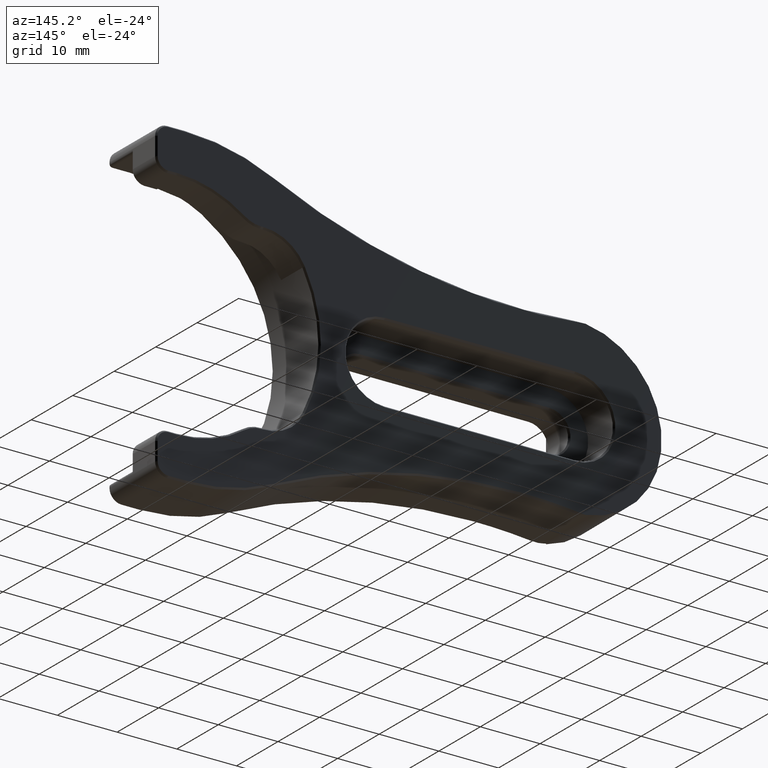
[diagram: clean part render]
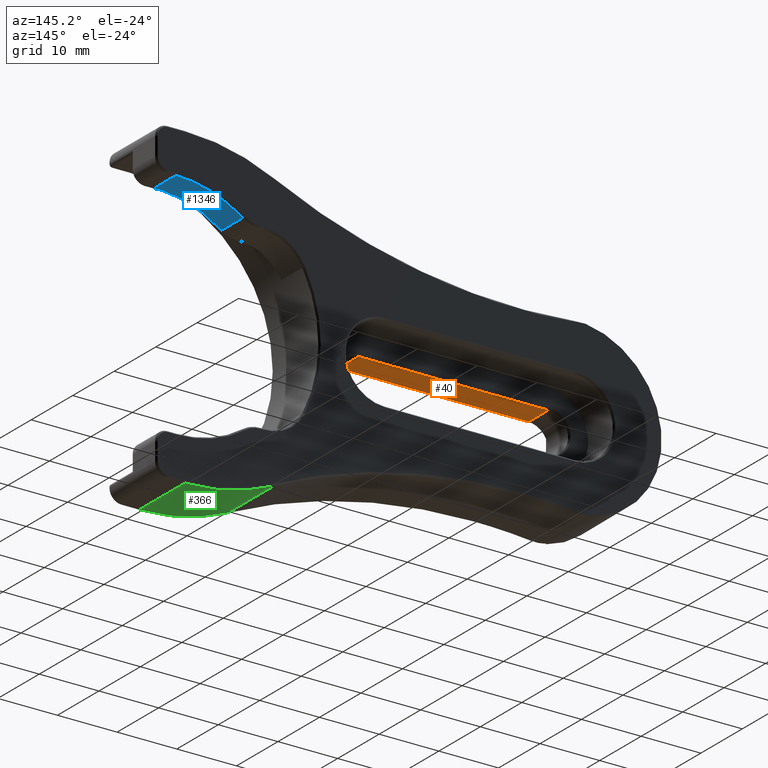
[diagram: same view with three faces highlighted in distinct colors, each labeled with its STEP entity id]
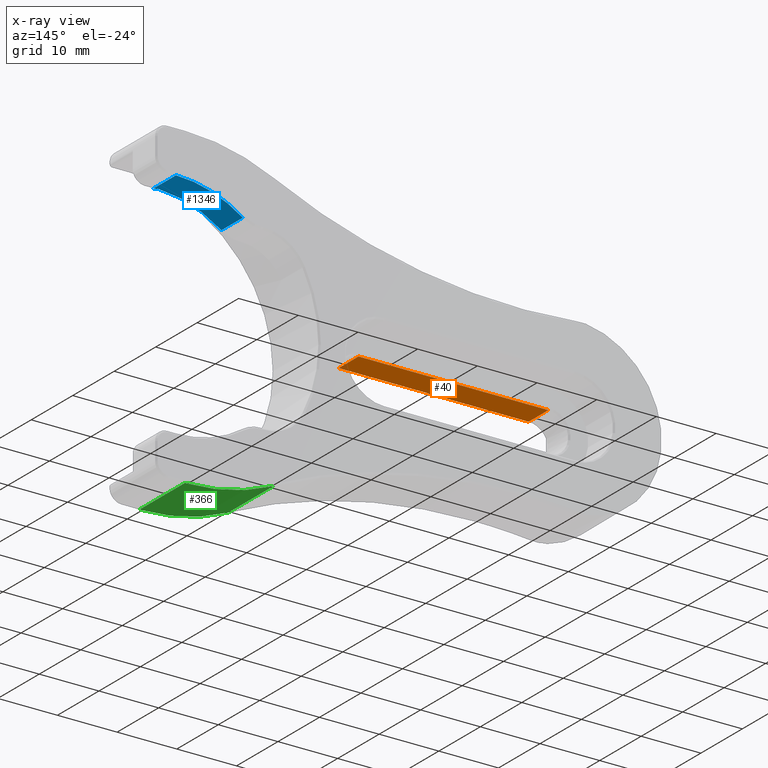
[diagram: x-ray of the same camera — body ghosted, the three highlighted faces saturated]
A machine part, auxiliary view with three faces highlighted in distinct colors.
The next image is the same camera in x-ray (body ghosted, the three faces saturated) — at least one of them is partly hidden behind the body in this view.
Their STEP definitions:

[orange] entity #40 — the highlighted planar face has unit normal (-0, 0, 1).
#40 = ADVANCED_FACE ( 'NONE', ( #2086 ), #1589, .F. ) ;
#257 = CARTESIAN_POINT ( 'NONE',  ( -66.69999999999998863, 0.000000000000000000, 3.299999999999999822 ) ) ;
#289 = VECTOR ( 'NONE', #1718, 1000.000000000000000 ) ;
#346 = VERTEX_POINT ( 'NONE', #1396 ) ;
#463 = DIRECTION ( 'NONE',  ( -0.000000000000000000, 1.000000000000000000, -0.000000000000000000 ) ) ;
#498 = EDGE_CURVE ( 'NONE', #2969, #346, #1826, .T. ) ;
#550 = DIRECTION ( 'NONE',  ( -0.000000000000000000, 1.000000000000000000, -0.000000000000000000 ) ) ;
#627 = ORIENTED_EDGE ( 'NONE', *, *, #2123, .T. ) ;
#975 = EDGE_CURVE ( 'NONE', #2137, #2969, #2521, .T. ) ;
#1271 = CARTESIAN_POINT ( 'NONE',  ( -34.89999999999999147, 5.550000000000014033, 3.299999999999999822 ) ) ;
#1281 = EDGE_CURVE ( 'NONE', #2137, #1727, #2777, .T. ) ;
#1396 = CARTESIAN_POINT ( 'NONE',  ( -66.69999999999998863, 5.550000000000014033, 3.299999999999999822 ) ) ;
#1461 = DIRECTION ( 'NONE',  ( 1.000000000000000000, 0.000000000000000000, 0.000000000000000000 ) ) ;
#1474 = VECTOR ( 'NONE', #550, 1000.000000000000000 ) ;
#1484 = DIRECTION ( 'NONE',  ( -1.000000000000000000, 0.000000000000000000, -0.000000000000000000 ) ) ;
#1535 = LINE ( 'NONE', #1271, #289 ) ;
#1536 = DIRECTION ( 'NONE',  ( -0.000000000000000000, 0.000000000000000000, 1.000000000000000000 ) ) ;
#1589 = PLANE ( 'NONE',  #2287 ) ;
#1593 = ORIENTED_EDGE ( 'NONE', *, *, #498, .T. ) ;
#1708 = ORIENTED_EDGE ( 'NONE', *, *, #1281, .F. ) ;
#1718 = DIRECTION ( 'NONE',  ( 1.000000000000000000, 0.000000000000000000, 0.000000000000000000 ) ) ;
#1727 = VERTEX_POINT ( 'NONE', #2241 ) ;
#1826 = LINE ( 'NONE', #257, #1474 ) ;
#2086 = FACE_OUTER_BOUND ( 'NONE', #2677, .T. ) ;
#2123 = EDGE_CURVE ( 'NONE', #346, #1727, #1535, .T. ) ;
#2137 = VERTEX_POINT ( 'NONE', #2503 ) ;
#2204 = VECTOR ( 'NONE', #1484, 1000.000000000000000 ) ;
#2241 = CARTESIAN_POINT ( 'NONE',  ( -34.89999999999999147, 5.550000000000014033, 3.299999999999999822 ) ) ;
#2285 = CARTESIAN_POINT ( 'NONE',  ( -66.69999999999998863, 0.7499999999999950040, 3.299999999999999822 ) ) ;
#2287 = AXIS2_PLACEMENT_3D ( 'NONE', #3106, #1536, #1461 ) ;
#2315 = CARTESIAN_POINT ( 'NONE',  ( -34.89999999999999147, 0.000000000000000000, 3.299999999999999822 ) ) ;
#2503 = CARTESIAN_POINT ( 'NONE',  ( -34.89999999999999147, 0.7499999999999950040, 3.299999999999999822 ) ) ;
#2521 = LINE ( 'NONE', #2536, #2204 ) ;
#2536 = CARTESIAN_POINT ( 'NONE',  ( -66.69999999999998863, 0.7499999999999950040, 3.299999999999999822 ) ) ;
#2620 = VECTOR ( 'NONE', #463, 1000.000000000000000 ) ;
#2677 = EDGE_LOOP ( 'NONE', ( #1708, #3267, #1593, #627 ) ) ;
#2777 = LINE ( 'NONE', #2315, #2620 ) ;
#2969 = VERTEX_POINT ( 'NONE', #2285 ) ;
#3106 = CARTESIAN_POINT ( 'NONE',  ( -66.69999999999998863, 0.000000000000000000, 3.299999999999999822 ) ) ;
#3267 = ORIENTED_EDGE ( 'NONE', *, *, #975, .T. ) ;

[blue] entity #1346 — the highlighted cylindrical surface (partial cylindrical patch) has radius 19.45 mm, axis along (-0, -1, -0).
#41 = CARTESIAN_POINT ( 'NONE',  ( 4.763876048683202943E-15, 6.350000000000023626, 19.44999999999999929 ) ) ;
#62 = DIRECTION ( 'NONE',  ( 0.000000000000000000, 0.000000000000000000, -1.000000000000000000 ) ) ;
#152 = CARTESIAN_POINT ( 'NONE',  ( -0.5015220482231351751, 6.599999999999999645, 19.44353300290731923 ) ) ;
#262 = LINE ( 'NONE', #727, #540 ) ;
#286 = VERTEX_POINT ( 'NONE', #1350 ) ;
#287 = DIRECTION ( 'NONE',  ( -0.000000000000000000, 1.000000000000000000, -0.000000000000000000 ) ) ;
#288 = AXIS2_PLACEMENT_3D ( 'NONE', #2363, #2397, #1846 ) ;
#357 = AXIS2_PLACEMENT_3D ( 'NONE', #852, #287, #2113 ) ;
#418 = LINE ( 'NONE', #2457, #2674 ) ;
#430 = ORIENTED_EDGE ( 'NONE', *, *, #2314, .F. ) ;
#518 = DIRECTION ( 'NONE',  ( -0.000000000000000000, 1.000000000000000000, -0.000000000000000000 ) ) ;
#538 = DIRECTION ( 'NONE',  ( 0.000000000000000000, 1.000000000000000000, 0.000000000000000000 ) ) ;
#540 = VECTOR ( 'NONE', #538, 1000.000000000000000 ) ;
#568 = DIRECTION ( 'NONE',  ( -0.000000000000000000, -1.000000000000000000, -0.000000000000000000 ) ) ;
#675 = EDGE_LOOP ( 'NONE', ( #1174, #1753, #430, #1467, #2826, #2733 ) ) ;
#683 = CARTESIAN_POINT ( 'NONE',  ( -0.5015220482231351751, 6.599999999999999645, 19.44353300290731923 ) ) ;
#727 = CARTESIAN_POINT ( 'NONE',  ( -11.19736850548029139, 12.00000000000000000, 15.90350397090144519 ) ) ;
#826 = FACE_OUTER_BOUND ( 'NONE', #675, .T. ) ;
#852 = CARTESIAN_POINT ( 'NONE',  ( 0.000000000000000000, 6.599999999999999645, 0.000000000000000000 ) ) ;
#859 = VERTEX_POINT ( 'NONE', #1717 ) ;
#1174 = ORIENTED_EDGE ( 'NONE', *, *, #2953, .T. ) ;
#1220 = EDGE_CURVE ( 'NONE', #286, #859, #262, .T. ) ;
#1346 = ADVANCED_FACE ( 'NONE', ( #826 ), #2078, .F. ) ;
#1350 = CARTESIAN_POINT ( 'NONE',  ( -11.19736850548029139, 6.599999999999999645, 15.90350397090144874 ) ) ;
#1387 = LINE ( 'NONE', #152, #3220 ) ;
#1419 = AXIS2_PLACEMENT_3D ( 'NONE', #2075, #568, #62 ) ;
#1444 = DIRECTION ( 'NONE',  ( -0.000000000000000000, -1.000000000000000000, -0.000000000000000000 ) ) ;
#1467 = ORIENTED_EDGE ( 'NONE', *, *, #2702, .F. ) ;
#1634 = EDGE_CURVE ( 'NONE', #859, #2398, #3172, .T. ) ;
#1717 = CARTESIAN_POINT ( 'NONE',  ( -11.19736850548029139, 11.75000000000002842, 15.90350397090144519 ) ) ;
#1753 = ORIENTED_EDGE ( 'NONE', *, *, #1876, .T. ) ;
#1846 = DIRECTION ( 'NONE',  ( 0.000000000000000000, 0.000000000000000000, -1.000000000000000000 ) ) ;
#1876 = EDGE_CURVE ( 'NONE', #2251, #2299, #2650, .T. ) ;
#2020 = CARTESIAN_POINT ( 'NONE',  ( 0.000000000000000000, 11.75000000000002842, 0.000000000000000000 ) ) ;
#2075 = CARTESIAN_POINT ( 'NONE',  ( 0.000000000000000000, 6.350000000000023626, 0.000000000000000000 ) ) ;
#2078 = CYLINDRICAL_SURFACE ( 'NONE', #288, 19.44999999999999929 ) ;
#2113 = DIRECTION ( 'NONE',  ( 0.000000000000000000, 0.000000000000000000, -1.000000000000000000 ) ) ;
#2251 = VERTEX_POINT ( 'NONE', #41 ) ;
#2299 = VERTEX_POINT ( 'NONE', #2712 ) ;
#2314 = EDGE_CURVE ( 'NONE', #3265, #2299, #1387, .T. ) ;
#2363 = CARTESIAN_POINT ( 'NONE',  ( 0.000000000000000000, 12.00000000000000000, 0.000000000000000000 ) ) ;
#2397 = DIRECTION ( 'NONE',  ( -0.000000000000000000, -1.000000000000000000, -0.000000000000000000 ) ) ;
#2398 = VERTEX_POINT ( 'NONE', #2915 ) ;
#2457 = CARTESIAN_POINT ( 'NONE',  ( 4.763876048683202943E-15, 12.00000000000000000, 19.44999999999999929 ) ) ;
#2650 = CIRCLE ( 'NONE', #1419, 19.44999999999999929 ) ;
#2674 = VECTOR ( 'NONE', #1444, 1000.000000000000000 ) ;
#2702 = EDGE_CURVE ( 'NONE', #286, #3265, #2815, .T. ) ;
#2712 = CARTESIAN_POINT ( 'NONE',  ( -0.5015220482231351751, 6.350000000000023626, 19.44353300290731923 ) ) ;
#2733 = ORIENTED_EDGE ( 'NONE', *, *, #1634, .T. ) ;
#2815 = CIRCLE ( 'NONE', #357, 19.45000000000000284 ) ;
#2826 = ORIENTED_EDGE ( 'NONE', *, *, #1220, .T. ) ;
#2855 = AXIS2_PLACEMENT_3D ( 'NONE', #2020, #518, #3033 ) ;
#2915 = CARTESIAN_POINT ( 'NONE',  ( 4.763876048683202943E-15, 11.75000000000002842, 19.44999999999999929 ) ) ;
#2953 = EDGE_CURVE ( 'NONE', #2398, #2251, #418, .T. ) ;
#3033 = DIRECTION ( 'NONE',  ( 0.000000000000000000, 0.000000000000000000, 1.000000000000000000 ) ) ;
#3148 = DIRECTION ( 'NONE',  ( -0.000000000000000000, -1.000000000000000000, -0.000000000000000000 ) ) ;
#3172 = CIRCLE ( 'NONE', #2855, 19.44999999999999929 ) ;
#3220 = VECTOR ( 'NONE', #3148, 1000.000000000000000 ) ;
#3265 = VERTEX_POINT ( 'NONE', #683 ) ;

[green] entity #366 — the highlighted cylindrical surface (partial cylindrical patch) has radius 35 mm, axis along (-0, 1, -0).
#21 = CARTESIAN_POINT ( 'NONE',  ( -1.499999999999989120, 11.75000000000002842, -26.50000000000000000 ) ) ;
#34 = VECTOR ( 'NONE', #2236, 1000.000000000000000 ) ;
#58 = DIRECTION ( 'NONE',  ( -0.000000000000000000, -1.000000000000000000, -0.000000000000000000 ) ) ;
#139 = DIRECTION ( 'NONE',  ( 3.549987684766822921E-15, 0.000000000000000000, 1.000000000000000000 ) ) ;
#299 = LINE ( 'NONE', #1643, #1633 ) ;
#366 = ADVANCED_FACE ( 'NONE', ( #2400 ), #923, .T. ) ;
#416 = CARTESIAN_POINT ( 'NONE',  ( -16.35178773790838846, 0.7499999999999933387, -23.19265531614719933 ) ) ;
#647 = CIRCLE ( 'NONE', #1825, 34.99999999999999289 ) ;
#663 = LINE ( 'NONE', #2929, #34 ) ;
#886 = EDGE_CURVE ( 'NONE', #3228, #2685, #663, .T. ) ;
#923 = CYLINDRICAL_SURFACE ( 'NONE', #2188, 35.00000000000000000 ) ;
#936 = CARTESIAN_POINT ( 'NONE',  ( -1.499999999999989120, 0.7499999999999933387, -26.50000000000000000 ) ) ;
#1178 = VERTEX_POINT ( 'NONE', #416 ) ;
#1329 = EDGE_CURVE ( 'NONE', #3228, #1178, #647, .T. ) ;
#1385 = EDGE_CURVE ( 'NONE', #1178, #3233, #299, .T. ) ;
#1596 = DIRECTION ( 'NONE',  ( -0.000000000000000000, 1.000000000000000000, -0.000000000000000000 ) ) ;
#1613 = ORIENTED_EDGE ( 'NONE', *, *, #1329, .T. ) ;
#1630 = CARTESIAN_POINT ( 'NONE',  ( -1.499999999999993561, 0.000000000000000000, 8.499999999999996447 ) ) ;
#1633 = VECTOR ( 'NONE', #1596, 1000.000000000000000 ) ;
#1643 = CARTESIAN_POINT ( 'NONE',  ( -16.35178773790838846, 0.000000000000000000, -23.19265531614719933 ) ) ;
#1825 = AXIS2_PLACEMENT_3D ( 'NONE', #2627, #2595, #3113 ) ;
#1923 = ORIENTED_EDGE ( 'NONE', *, *, #2272, .T. ) ;
#2050 = CIRCLE ( 'NONE', #2375, 35.00000000000000000 ) ;
#2188 = AXIS2_PLACEMENT_3D ( 'NONE', #1630, #3191, #2416 ) ;
#2236 = DIRECTION ( 'NONE',  ( -0.000000000000000000, 1.000000000000000000, -0.000000000000000000 ) ) ;
#2272 = EDGE_CURVE ( 'NONE', #3233, #2685, #2050, .T. ) ;
#2284 = ORIENTED_EDGE ( 'NONE', *, *, #886, .F. ) ;
#2338 = EDGE_LOOP ( 'NONE', ( #2284, #1613, #2811, #1923 ) ) ;
#2353 = CARTESIAN_POINT ( 'NONE',  ( -1.499999999999993561, 11.75000000000002842, 8.499999999999996447 ) ) ;
#2375 = AXIS2_PLACEMENT_3D ( 'NONE', #2353, #58, #139 ) ;
#2400 = FACE_OUTER_BOUND ( 'NONE', #2338, .T. ) ;
#2416 = DIRECTION ( 'NONE',  ( 0.000000000000000000, 0.000000000000000000, 1.000000000000000000 ) ) ;
#2595 = DIRECTION ( 'NONE',  ( -0.000000000000000000, 1.000000000000000000, -0.000000000000000000 ) ) ;
#2627 = CARTESIAN_POINT ( 'NONE',  ( -1.499999999999993561, 0.7499999999999933387, 8.499999999999996447 ) ) ;
#2685 = VERTEX_POINT ( 'NONE', #21 ) ;
#2811 = ORIENTED_EDGE ( 'NONE', *, *, #1385, .T. ) ;
#2929 = CARTESIAN_POINT ( 'NONE',  ( -1.499999999999989120, 0.000000000000000000, -26.50000000000000000 ) ) ;
#3113 = DIRECTION ( 'NONE',  ( 0.000000000000000000, 0.000000000000000000, -1.000000000000000000 ) ) ;
#3191 = DIRECTION ( 'NONE',  ( -0.000000000000000000, 1.000000000000000000, -0.000000000000000000 ) ) ;
#3228 = VERTEX_POINT ( 'NONE', #936 ) ;
#3233 = VERTEX_POINT ( 'NONE', #3234 ) ;
#3234 = CARTESIAN_POINT ( 'NONE',  ( -16.35178773790838846, 11.75000000000002842, -23.19265531614719933 ) ) ;